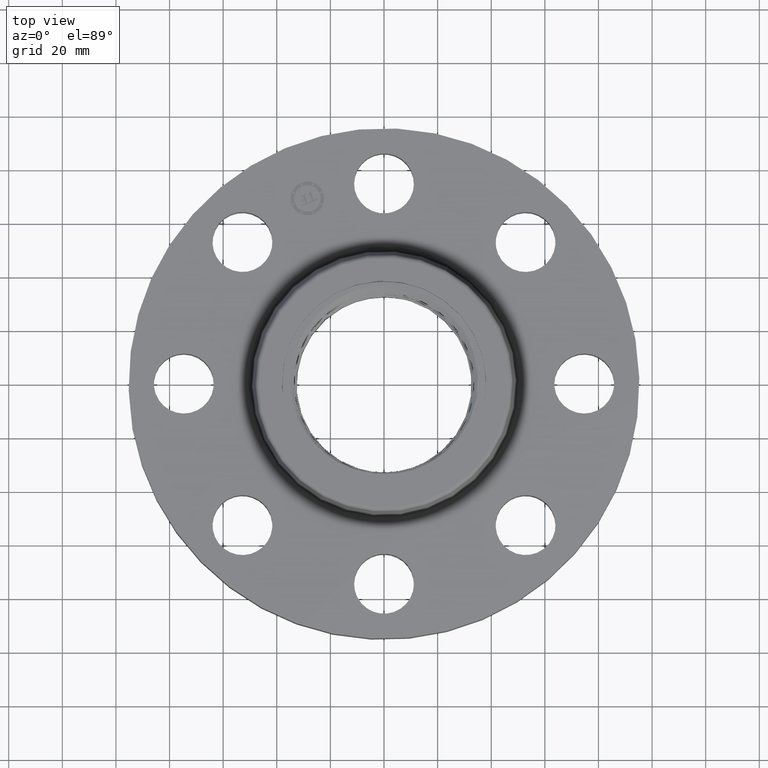
[diagram: clean part render]
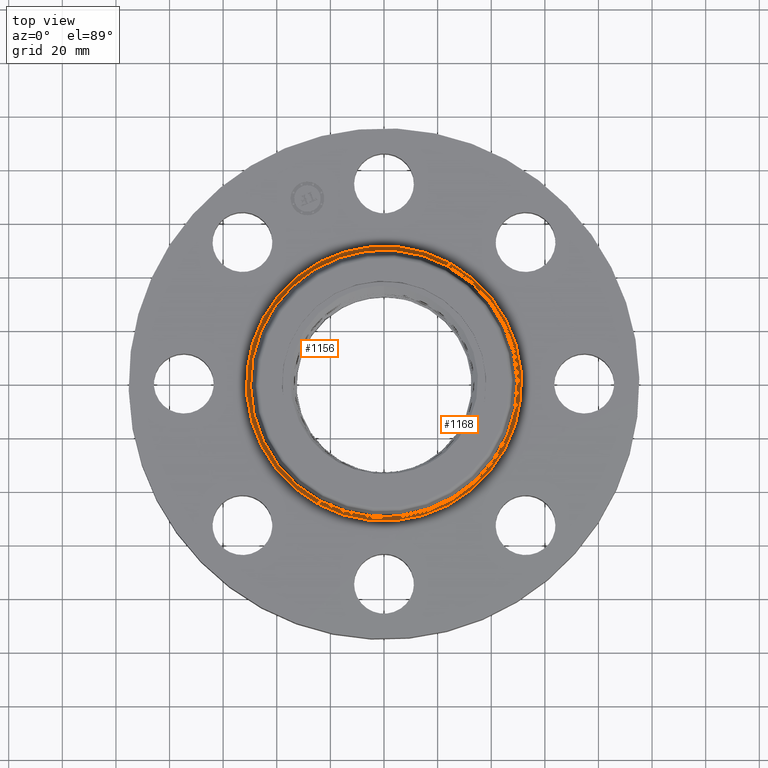
[diagram: same view with one multi-face feature highlighted, each face labeled with its STEP entity id]
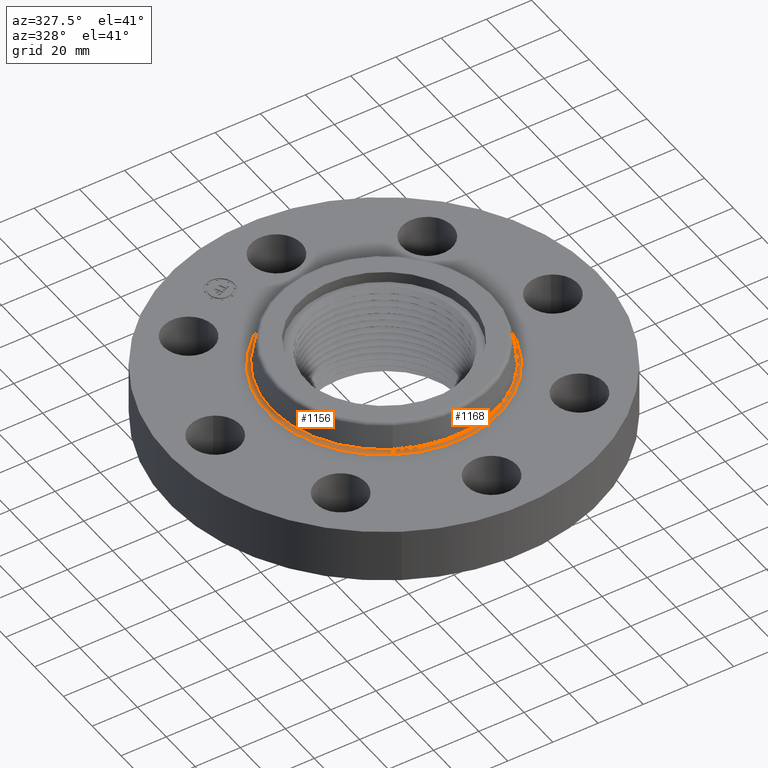
[diagram: same view with one multi-face feature highlighted, each face labeled with its STEP entity id]
A machine part, top view. The highlighted faces form ONE feature: a constant-radius fillet chain: 2 tangent blend faces with common blend radius 1.524 mm. The faces share edges in the B-rep.
A second angle (auxiliary view) of the same feature is appended — it is thin or edge-on in the first view.
Their STEP definitions:
[1] entity #1156 (Torus):
#1090=AXIS2_PLACEMENT_3D('Circle Axis2P3D',#1088,#1089,$) ;
#1129=AXIS2_PLACEMENT_3D('Torus Axis2P3D',#1126,#1127,#1128) ;
#1133=AXIS2_PLACEMENT_3D('Circle Axis2P3D',#1131,#1132,$) ;
#1142=AXIS2_PLACEMENT_3D('Circle Axis2P3D',#1140,#1141,$) ;
#1147=AXIS2_PLACEMENT_3D('Circle Axis2P3D',#1145,#1146,$) ;
#1088=CARTESIAN_POINT('Axis2P3D Location',(0.,0.,0.989581109344)) ;
#1092=CARTESIAN_POINT('Vertex',(-0.940276939367,-1.72116539252,0.989581109344)) ;
#1094=CARTESIAN_POINT('Vertex',(0.940276939367,1.72116539252,0.989581109344)) ;
#1126=CARTESIAN_POINT('Axis2P3D Location',(0.,0.,1.)) ;
#1131=CARTESIAN_POINT('Axis2P3D Location',(0.,0.,0.940000000004)) ;
#1135=CARTESIAN_POINT('Vertex',(-0.968605458611,-1.77302039917,0.940000000004)) ;
#1137=CARTESIAN_POINT('Vertex',(0.968605458611,1.77302039917,0.940000000004)) ;
#1140=CARTESIAN_POINT('Axis2P3D Location',(-0.968605458611,-1.77302039917,1.)) ;
#1145=CARTESIAN_POINT('Axis2P3D Location',(0.968605458611,1.77302039917,1.)) ;
#1089=DIRECTION('Axis2P3D Direction',(0.,0.,-0.0393700787402)) ;
#1127=DIRECTION('Axis2P3D Direction',(0.,0.,-0.0393700787402)) ;
#1128=DIRECTION('Axis2P3D XDirection',(0.0188750212049,0.0345504945626,0.)) ;
#1132=DIRECTION('Axis2P3D Direction',(0.,0.,-0.0393700787402)) ;
#1141=DIRECTION('Axis2P3D Direction',(0.0345504945626,-0.0188750212049,0.)) ;
#1146=DIRECTION('Axis2P3D Direction',(-0.0345504945626,0.0188750212049,0.)) ;
#1151=ORIENTED_EDGE('',*,*,#1139,.F.) ;
#1152=ORIENTED_EDGE('',*,*,#1144,.T.) ;
#1153=ORIENTED_EDGE('',*,*,#1096,.T.) ;
#1154=ORIENTED_EDGE('',*,*,#1149,.F.) ;
#1156=ADVANCED_FACE('PartBody',(#1155),#1130,.F.) ;
#1091=CIRCLE('generated circle',#1090,1.9612575127) ;
#1134=CIRCLE('generated circle',#1133,2.02034597788) ;
#1143=CIRCLE('generated circle',#1142,0.0600000000002) ;
#1148=CIRCLE('generated circle',#1147,0.0600000000002) ;
#1130=TOROIDAL_SURFACE('homeo Torus',#1129,2.02034597788,0.0600000000002) ;
#1096=EDGE_CURVE('',#1093,#1095,#1091,.T.) ;
#1139=EDGE_CURVE('',#1136,#1138,#1134,.T.) ;
#1144=EDGE_CURVE('',#1136,#1093,#1143,.T.) ;
#1149=EDGE_CURVE('',#1138,#1095,#1148,.T.) ;
#1150=EDGE_LOOP('',(#1151,#1152,#1153,#1154)) ;
#1155=FACE_OUTER_BOUND('',#1150,.T.) ;
#1093=VERTEX_POINT('',#1092) ;
#1095=VERTEX_POINT('',#1094) ;
#1136=VERTEX_POINT('',#1135) ;
#1138=VERTEX_POINT('',#1137) ;
[2] entity #1168 (Torus):
#1116=AXIS2_PLACEMENT_3D('Circle Axis2P3D',#1114,#1115,$) ;
#1129=AXIS2_PLACEMENT_3D('Torus Axis2P3D',#1126,#1127,#1128) ;
#1142=AXIS2_PLACEMENT_3D('Circle Axis2P3D',#1140,#1141,$) ;
#1147=AXIS2_PLACEMENT_3D('Circle Axis2P3D',#1145,#1146,$) ;
#1159=AXIS2_PLACEMENT_3D('Circle Axis2P3D',#1157,#1158,$) ;
#1092=CARTESIAN_POINT('Vertex',(-0.940276939367,-1.72116539252,0.989581109344)) ;
#1094=CARTESIAN_POINT('Vertex',(0.940276939367,1.72116539252,0.989581109344)) ;
#1114=CARTESIAN_POINT('Axis2P3D Location',(0.,0.,0.989581109344)) ;
#1126=CARTESIAN_POINT('Axis2P3D Location',(0.,0.,1.)) ;
#1135=CARTESIAN_POINT('Vertex',(-0.968605458611,-1.77302039917,0.940000000004)) ;
#1137=CARTESIAN_POINT('Vertex',(0.968605458611,1.77302039917,0.940000000004)) ;
#1140=CARTESIAN_POINT('Axis2P3D Location',(-0.968605458611,-1.77302039917,1.)) ;
#1145=CARTESIAN_POINT('Axis2P3D Location',(0.968605458611,1.77302039917,1.)) ;
#1157=CARTESIAN_POINT('Axis2P3D Location',(0.,0.,0.940000000004)) ;
#1115=DIRECTION('Axis2P3D Direction',(0.,0.,-0.0393700787402)) ;
#1127=DIRECTION('Axis2P3D Direction',(0.,0.,-0.0393700787402)) ;
#1128=DIRECTION('Axis2P3D XDirection',(0.0188750212049,0.0345504945626,0.)) ;
#1141=DIRECTION('Axis2P3D Direction',(0.0345504945626,-0.0188750212049,0.)) ;
#1146=DIRECTION('Axis2P3D Direction',(-0.0345504945626,0.0188750212049,0.)) ;
#1158=DIRECTION('Axis2P3D Direction',(0.,0.,-0.0393700787402)) ;
#1163=ORIENTED_EDGE('',*,*,#1161,.F.) ;
#1164=ORIENTED_EDGE('',*,*,#1149,.T.) ;
#1165=ORIENTED_EDGE('',*,*,#1118,.T.) ;
#1166=ORIENTED_EDGE('',*,*,#1144,.F.) ;
#1168=ADVANCED_FACE('PartBody',(#1167),#1130,.F.) ;
#1117=CIRCLE('generated circle',#1116,1.9612575127) ;
#1143=CIRCLE('generated circle',#1142,0.0600000000002) ;
#1148=CIRCLE('generated circle',#1147,0.0600000000002) ;
#1160=CIRCLE('generated circle',#1159,2.02034597788) ;
#1130=TOROIDAL_SURFACE('homeo Torus',#1129,2.02034597788,0.0600000000002) ;
#1118=EDGE_CURVE('',#1095,#1093,#1117,.T.) ;
#1144=EDGE_CURVE('',#1136,#1093,#1143,.T.) ;
#1149=EDGE_CURVE('',#1138,#1095,#1148,.T.) ;
#1161=EDGE_CURVE('',#1138,#1136,#1160,.T.) ;
#1162=EDGE_LOOP('',(#1163,#1164,#1165,#1166)) ;
#1167=FACE_OUTER_BOUND('',#1162,.T.) ;
#1093=VERTEX_POINT('',#1092) ;
#1095=VERTEX_POINT('',#1094) ;
#1136=VERTEX_POINT('',#1135) ;
#1138=VERTEX_POINT('',#1137) ;